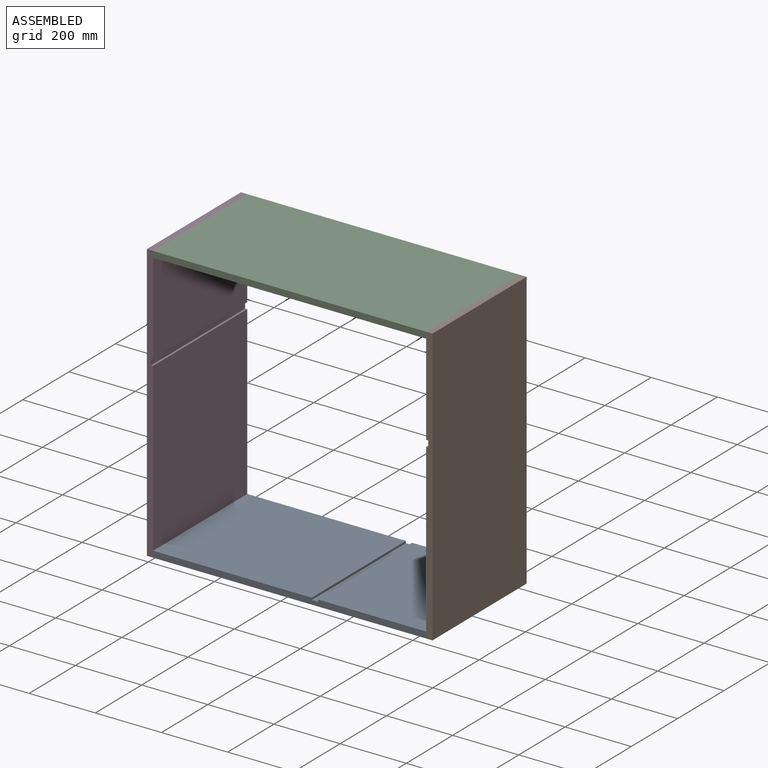
[diagram: assembled view]
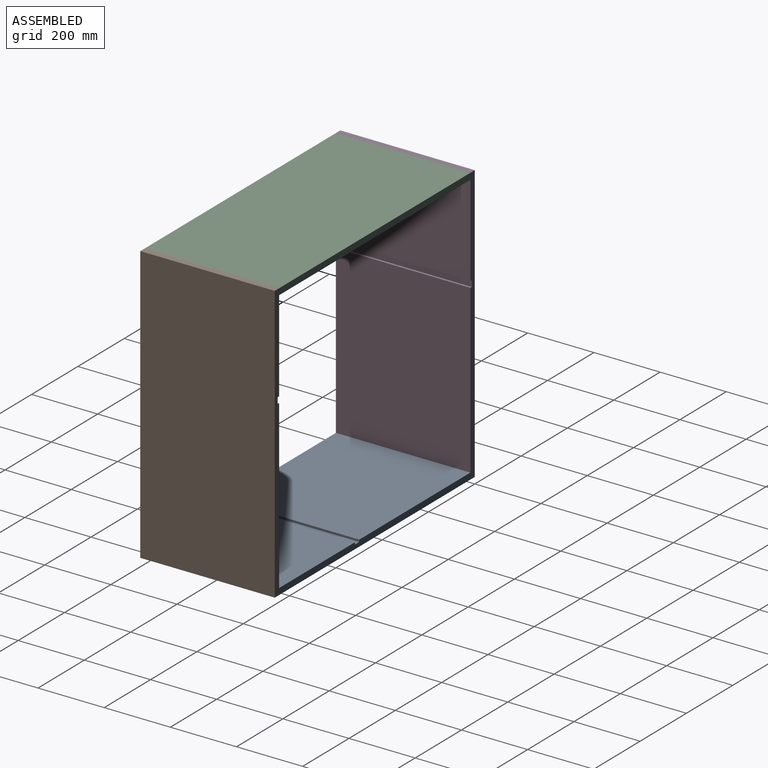
[diagram: assembled view, second angle]
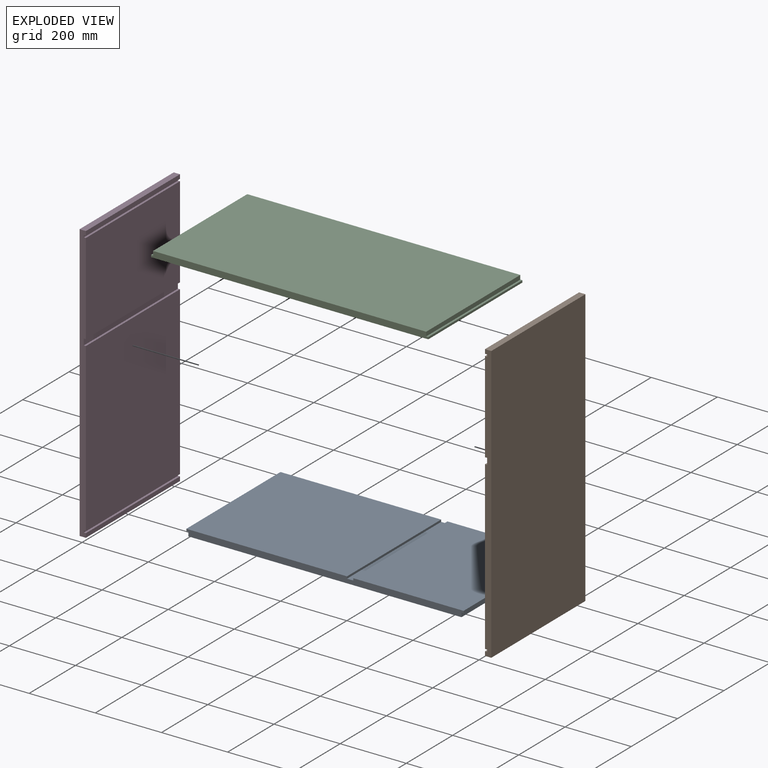
[diagram: exploded view]
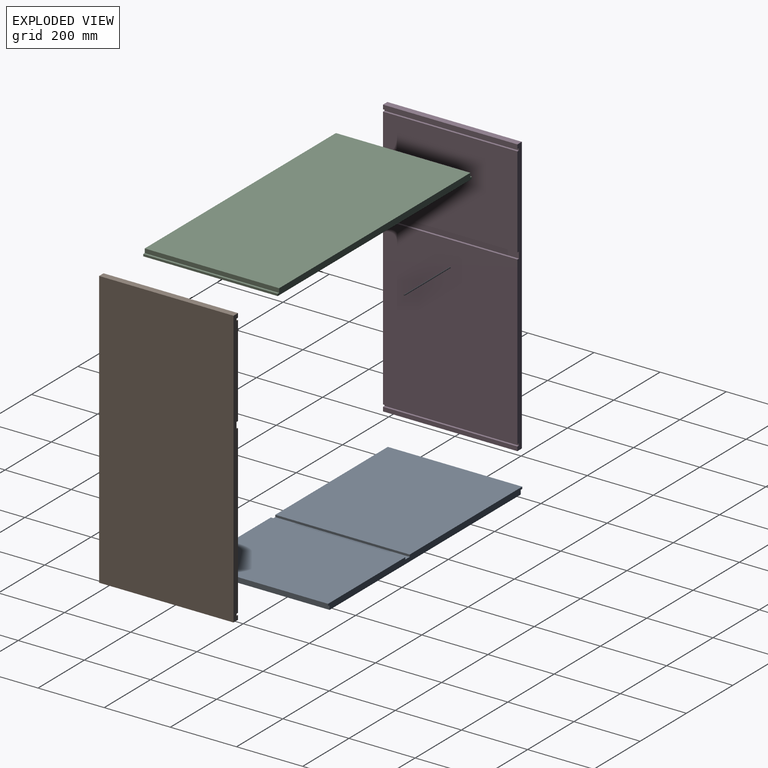
[diagram: exploded view, second angle]
ASSEMBLY  parts=4 mates=2
PART A: 14 faces, bbox 838.2x406.4x19.1 mm
  f0: plane 406.4x12.7mm, normal (-1,0,0), area 5161.3mm2, adj f3,f4,f5,f13
  f1: plane 406.4x12.7mm, normal (1,0,0), area 5161.3mm2, adj f3,f4,f5,f10
  f2: plane 406.4x333.38mm, normal (0,0,1), area 135483.6mm2, adj f3,f4,f9,f11
  f3: plane 838.2x19.05mm, normal (0,1,0), area 15685.5mm2, adj f0,f1,f2,f5,f6,f7,f8,f9
  f4: plane 838.2x19.05mm, normal (0,-1,0), area 15685.5mm2, adj f0,f1,f2,f5,f6,f7,f8,f9
  f5: plane 825.5x406.4mm, normal (0,0,-1), area 335483.2mm2, adj f0,f1,f3,f4
  f6: plane 485.78x406.4mm, normal (0,0,1), area 197419mm2, adj f3,f4,f7,f12
  f7: plane 406.4x6.35mm, normal (1,0,0), area 2580.6mm2, adj f3,f4,f6,f8
  f8: plane 406.4x19.05mm, normal (0,0,1), area 7741.9mm2, adj f3,f4,f7,f9
  f9: plane 406.4x6.35mm, normal (-1,0,0), area 2580.6mm2, adj f2,f3,f4,f8
  f10: plane 406.4x6.35mm, normal (0,0,-1), area 2580.6mm2, adj f1,f3,f4,f11
  f11: plane 406.4x6.35mm, normal (1,0,0), area 2580.6mm2, adj f2,f3,f4,f10
  f12: plane 406.4x6.35mm, normal (-1,0,0), area 2580.6mm2, adj f3,f4,f6,f13
  f13: plane 406.4x6.35mm, normal (0,0,-1), area 2580.6mm2, adj f0,f3,f4,f12
PART B: 18 faces, bbox 19.1x406.4x838.2 mm
  f0: plane 504.83x406.4mm, normal (1,0,0), area 205160.9mm2, adj f1,f2,f9,f16
  f1: plane 838.2x19.05mm, normal (0,-1,0), area 15766.1mm2, adj f0,f3,f4,f5,f6,f7,f8,f9
  f2: plane 838.2x19.05mm, normal (0,1,0), area 15766.1mm2, adj f0,f3,f4,f5,f6,f7,f8,f9
  f3: plane 406.4x12.7mm, normal (1,0,0), area 5161.3mm2, adj f1,f2,f8,f12
  f4: plane 406.4x276.23mm, normal (1,0,0), area 112257.8mm2, adj f1,f2,f10,f14
  f5: plane 838.2x406.4mm, normal (-1,0,0), area 340644.5mm2, adj f1,f2,f6,f8
  f6: plane 406.4x19.05mm, normal (0,0,-1), area 7741.9mm2, adj f1,f2,f5,f7
  f7: plane 406.4x12.7mm, normal (1,0,0), area 5161.3mm2, adj f1,f2,f6,f15
  f8: plane 406.4x19.05mm, normal (0,0,1), area 7741.9mm2, adj f1,f2,f3,f5
  f9: plane 406.4x6.35mm, normal (0,0,1), area 2580.6mm2, adj f0,f1,f2,f11
  f10: plane 406.4x6.35mm, normal (0,0,-1), area 2580.6mm2, adj f1,f2,f4,f11
  f11: plane 406.4x19.05mm, normal (1,0,0), area 7741.9mm2, adj f1,f2,f9,f10
  f12: plane 406.4x6.35mm, normal (0,0,-1), area 2580.6mm2, adj f1,f2,f3,f13
  f13: plane 406.4x6.35mm, normal (1,0,0), area 2580.6mm2, adj f1,f2,f12,f14
  f14: plane 406.4x6.35mm, normal (0,0,1), area 2580.6mm2, adj f1,f2,f4,f13
  f15: plane 406.4x6.35mm, normal (0,0,1), area 2580.6mm2, adj f1,f2,f7,f17
  f16: plane 406.4x6.35mm, normal (0,0,-1), area 2580.6mm2, adj f0,f1,f2,f17
  f17: plane 406.4x6.35mm, normal (1,0,0), area 2580.6mm2, adj f1,f2,f15,f16
PART C: 10 faces, bbox 838.2x406.4x19.1 mm
  f0: plane 838.2x19.05mm, normal (0,-1,0), area 15806.4mm2, adj f1,f3,f4,f5,f6,f7,f8,f9
  f1: plane 406.4x6.35mm, normal (1,0,0), area 2580.6mm2, adj f0,f2,f5,f8
  f2: plane 838.2x19.05mm, normal (0,1,0), area 15806.4mm2, adj f1,f3,f4,f5,f6,f7,f8,f9
  f3: plane 825.5x406.4mm, normal (0,0,1), area 335483.2mm2, adj f0,f2,f7,f9
  f4: plane 406.4x6.35mm, normal (-1,0,0), area 2580.6mm2, adj f0,f2,f5,f6
  f5: plane 838.2x406.4mm, normal (0,0,-1), area 340644.5mm2, adj f0,f1,f2,f4
  f6: plane 406.4x6.35mm, normal (0,0,1), area 2580.6mm2, adj f0,f2,f4,f7
  f7: plane 406.4x12.7mm, normal (-1,0,0), area 5161.3mm2, adj f0,f2,f3,f6
  f8: plane 406.4x6.35mm, normal (0,0,1), area 2580.6mm2, adj f0,f1,f2,f9
  f9: plane 406.4x12.7mm, normal (1,0,0), area 5161.3mm2, adj f0,f2,f3,f8
PART D: same geometry as B
PLACE A t=(19.05,-406.4,0)mm
PLACE B rot(axis=(0,0,1),180deg) t=(863.6,-406.4,0)mm
PLACE C t=(12.7,-406.4,819.15)mm
PLACE D at identity fixed
MATE fastened D.f1 <-> C.f0  axis (0,-1,0) through (12.7,-406.4,822.32)mm
MATE fastened D.f1 <-> A.f4  axis (0,-1,0) through (19.05,-406.4,0)mm
